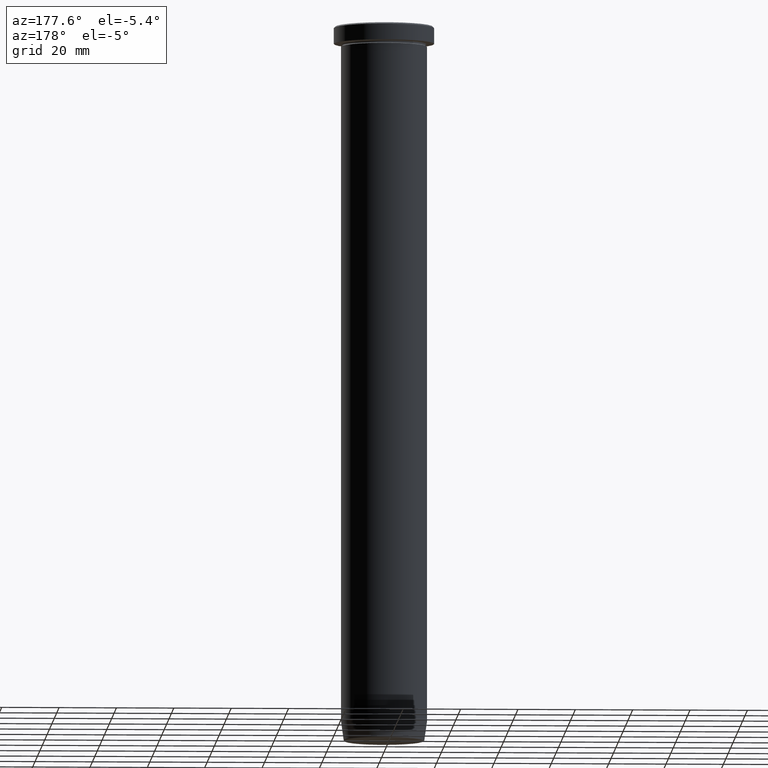
[diagram: clean part render]
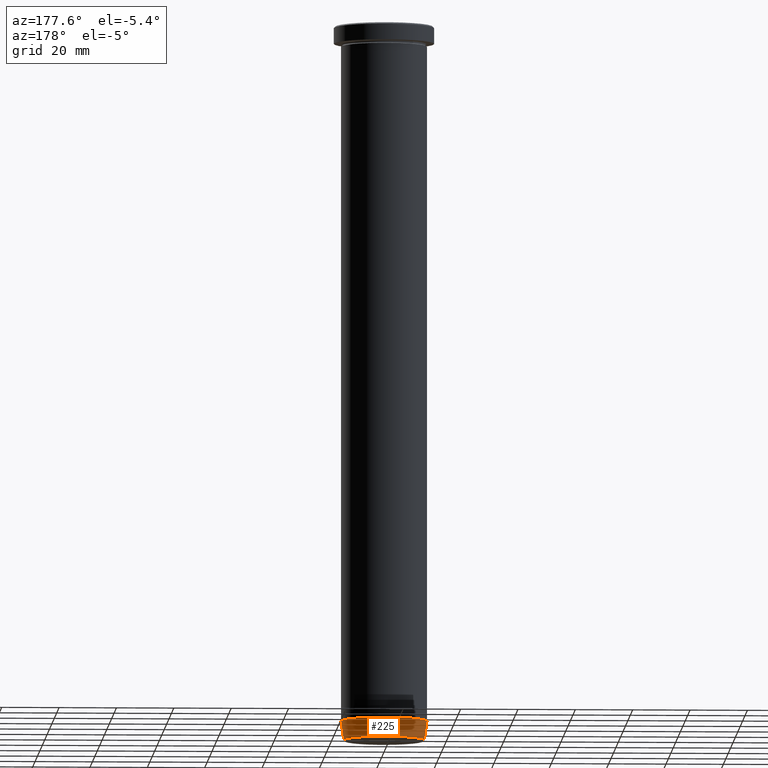
[diagram: same view with one face highlighted and labeled with its STEP entity id]
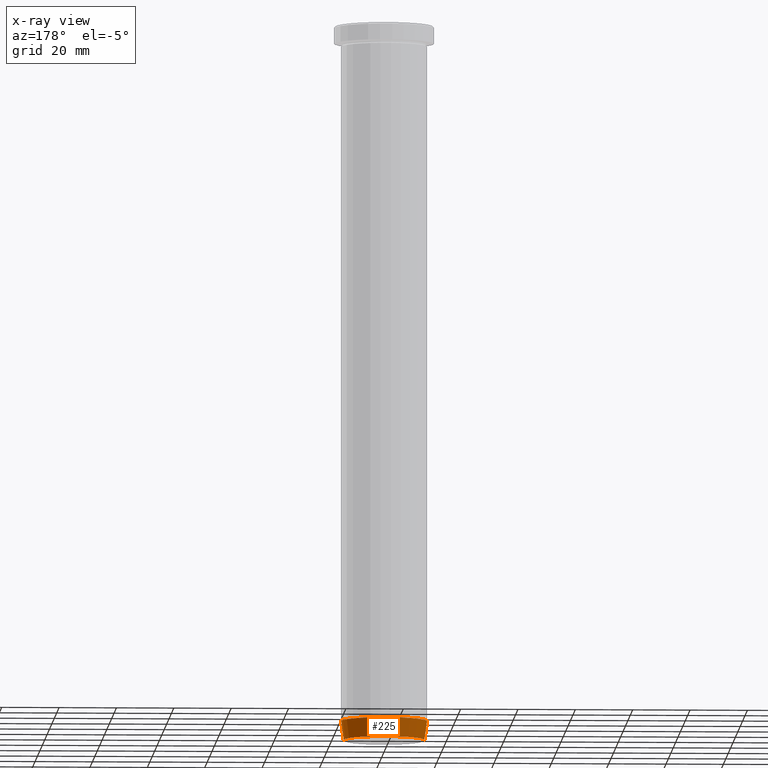
[diagram: x-ray of the same camera — body ghosted, the highlighted face saturated]
A machine part, auxiliary view. The second image highlights one B-rep face of the part: STEP entity #225.
The next image is the same camera in x-ray: the body ghosted, the highlighted face saturated — about 0% of this face is hidden behind the body in this view.
In plain terms, the highlighted conical surface has half-angle 8 deg.
Its self-contained STEP definition (entity closure, byte-faithful):
#18 = ORIENTED_EDGE ( 'NONE', *, *, #415, .T. ) ;
#32 = DIRECTION ( 'NONE',  ( 0.1391731009600661317, 0.000000000000000000, 0.9902680687415702510 ) ) ;
#55 = CARTESIAN_POINT ( 'NONE',  ( -14.07670482254592059, 1.780434674534163799E-15, -249.5695865504800679 ) ) ;
#74 = CARTESIAN_POINT ( 'NONE',  ( 14.01621415708325280, 0.000000000000000000, -250.0000000000000000 ) ) ;
#89 = FACE_OUTER_BOUND ( 'NONE', #247, .T. ) ;
#105 = ORIENTED_EDGE ( 'NONE', *, *, #211, .T. ) ;
#110 = CONICAL_SURFACE ( 'NONE', #540, 14.01621415708325280, 0.1396263401595470577 ) ;
#120 = CARTESIAN_POINT ( 'NONE',  ( 0.000000000000000000, 0.000000000000000000, -249.5695865504800679 ) ) ;
#126 = CIRCLE ( 'NONE', #223, 15.00000000000000000 ) ;
#148 = ORIENTED_EDGE ( 'NONE', *, *, #500, .F. ) ;
#167 = DIRECTION ( 'NONE',  ( -0.000000000000000000, -0.000000000000000000, 1.000000000000000000 ) ) ;
#180 = DIRECTION ( 'NONE',  ( 1.000000000000000000, 0.000000000000000000, 0.000000000000000000 ) ) ;
#211 = EDGE_CURVE ( 'NONE', #392, #443, #496, .T. ) ;
#214 = CARTESIAN_POINT ( 'NONE',  ( -15.00000000000000000, 1.836970198721029589E-15, -243.0000000000000000 ) ) ;
#219 = DIRECTION ( 'NONE',  ( -0.1391731009600661317, 1.704378926181564302E-17, 0.9902680687415702510 ) ) ;
#221 = DIRECTION ( 'NONE',  ( -0.000000000000000000, -0.000000000000000000, 1.000000000000000000 ) ) ;
#223 = AXIS2_PLACEMENT_3D ( 'NONE', #399, #167, #586 ) ;
#225 = ADVANCED_FACE ( 'NONE', ( #89 ), #110, .T. ) ;
#247 = EDGE_LOOP ( 'NONE', ( #18, #105, #148, #337 ) ) ;
#252 = DIRECTION ( 'NONE',  ( -0.000000000000000000, -0.000000000000000000, 1.000000000000000000 ) ) ;
#266 = CARTESIAN_POINT ( 'NONE',  ( 14.07670482254592059, 0.000000000000000000, -249.5695865504800679 ) ) ;
#303 = LINE ( 'NONE', #74, #492 ) ;
#322 = CARTESIAN_POINT ( 'NONE',  ( 0.000000000000000000, 0.000000000000000000, -250.0000000000000000 ) ) ;
#337 = ORIENTED_EDGE ( 'NONE', *, *, #430, .F. ) ;
#392 = VERTEX_POINT ( 'NONE', #55 ) ;
#399 = CARTESIAN_POINT ( 'NONE',  ( 0.000000000000000000, 0.000000000000000000, -243.0000000000000000 ) ) ;
#401 = DIRECTION ( 'NONE',  ( -1.000000000000000000, 0.000000000000000000, 0.000000000000000000 ) ) ;
#415 = EDGE_CURVE ( 'NONE', #514, #392, #422, .T. ) ;
#422 = CIRCLE ( 'NONE', #505, 14.07670482254592059 ) ;
#430 = EDGE_CURVE ( 'NONE', #514, #474, #303, .T. ) ;
#443 = VERTEX_POINT ( 'NONE', #214 ) ;
#453 = CARTESIAN_POINT ( 'NONE',  ( -14.01621415708325280, 1.716491180363582438E-15, -250.0000000000000000 ) ) ;
#474 = VERTEX_POINT ( 'NONE', #552 ) ;
#492 = VECTOR ( 'NONE', #32, 1000.000000000000000 ) ;
#496 = LINE ( 'NONE', #453, #549 ) ;
#500 = EDGE_CURVE ( 'NONE', #474, #443, #126, .T. ) ;
#505 = AXIS2_PLACEMENT_3D ( 'NONE', #120, #252, #401 ) ;
#514 = VERTEX_POINT ( 'NONE', #266 ) ;
#540 = AXIS2_PLACEMENT_3D ( 'NONE', #322, #221, #180 ) ;
#549 = VECTOR ( 'NONE', #219, 1000.000000000000000 ) ;
#552 = CARTESIAN_POINT ( 'NONE',  ( 15.00000000000000000, 0.000000000000000000, -243.0000000000000000 ) ) ;
#586 = DIRECTION ( 'NONE',  ( 1.000000000000000000, 0.000000000000000000, 0.000000000000000000 ) ) ;